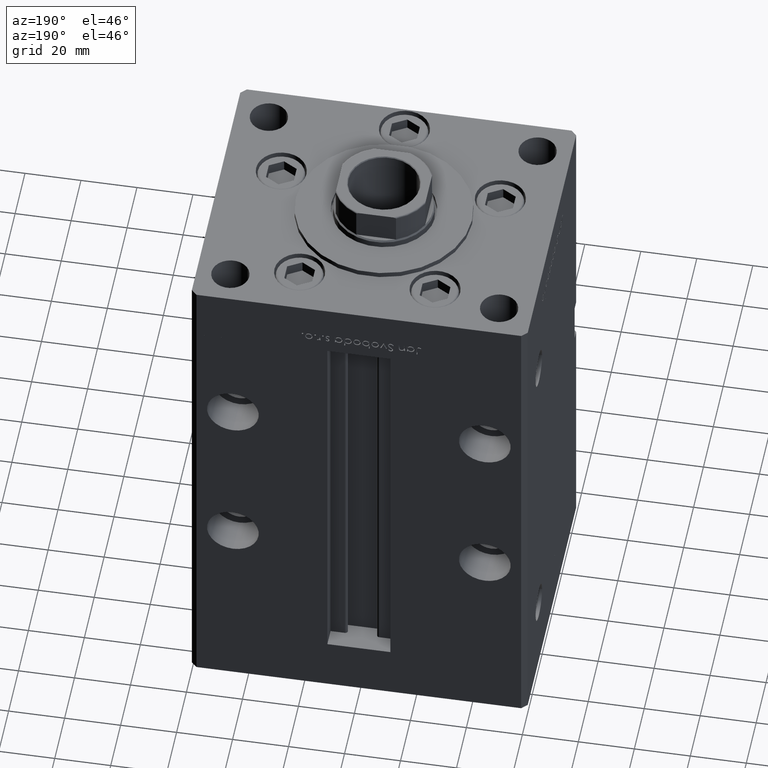
[diagram: clean part render]
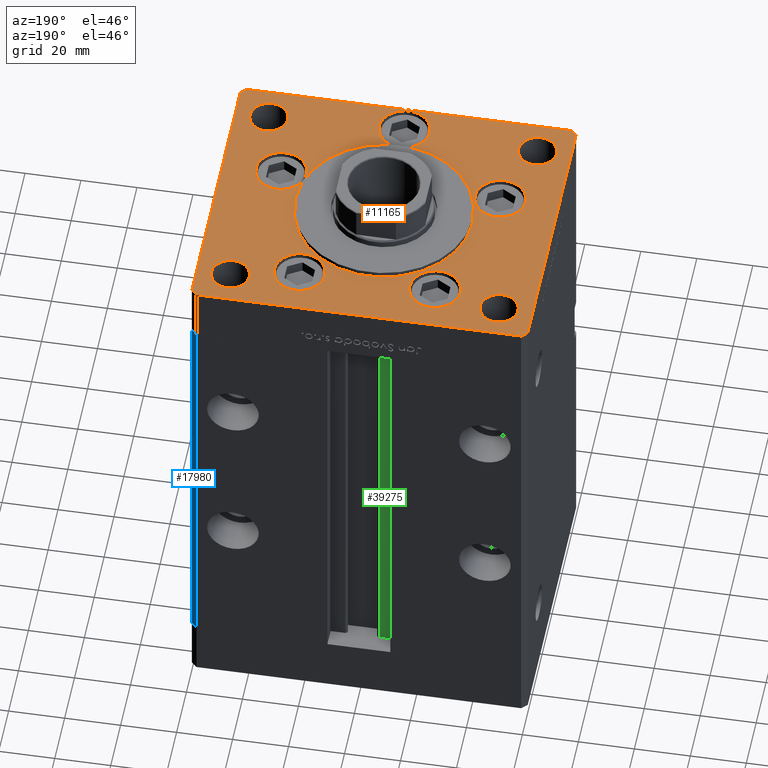
[diagram: same view with three faces highlighted in distinct colors, each labeled with its STEP entity id]
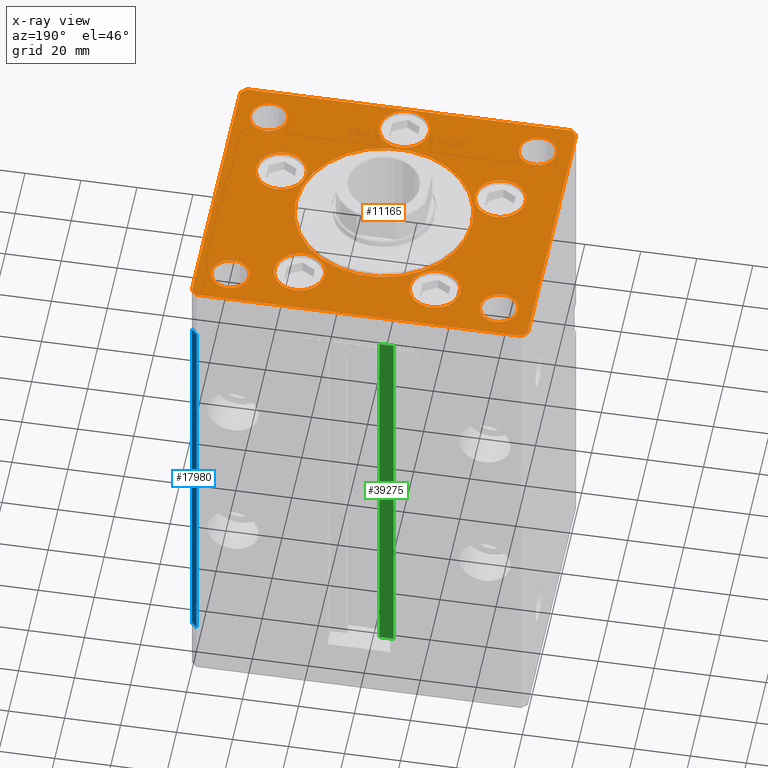
[diagram: x-ray of the same camera — body ghosted, the three highlighted faces saturated]
A machine part, auxiliary view with three faces highlighted in distinct colors.
The next image is the same camera in x-ray (body ghosted, the three faces saturated) — at least one of them is partly hidden behind the body in this view.
Their STEP definitions:

[orange] entity #11165 — the highlighted planar face has unit normal (0, 0, 1).
#244 = DIRECTION ( 'NONE',  ( 0.000000000000000000, -1.000000000000000000, 0.000000000000000000 ) ) ;
#464 = ORIENTED_EDGE ( 'NONE', *, *, #22025, .F. ) ;
#522 = DIRECTION ( 'NONE',  ( 1.000000000000000000, 0.000000000000000000, 0.000000000000000000 ) ) ;
#541 = ORIENTED_EDGE ( 'NONE', *, *, #11261, .T. ) ;
#556 = LINE ( 'NONE', #21225, #48701 ) ;
#705 = DIRECTION ( 'NONE',  ( 1.000000000000000000, 0.000000000000000000, 0.000000000000000000 ) ) ;
#729 = VERTEX_POINT ( 'NONE', #44533 ) ;
#972 = LINE ( 'NONE', #33717, #1427 ) ;
#1060 = CARTESIAN_POINT ( 'NONE',  ( -48.00000000000000000, 39.00000000000000711, 0.000000000000000000 ) ) ;
#1285 = CARTESIAN_POINT ( 'NONE',  ( 9.000000000000000000, -41.50000000000000000, 0.000000000000000000 ) ) ;
#1320 = CARTESIAN_POINT ( 'NONE',  ( 60.00000000000001421, -48.99999999999992895, 0.000000000000000000 ) ) ;
#1427 = VECTOR ( 'NONE', #16791, 1000.000000000000000 ) ;
#1517 = VERTEX_POINT ( 'NONE', #22561 ) ;
#1694 = AXIS2_PLACEMENT_3D ( 'NONE', #44823, #8851, #522 ) ;
#1729 = EDGE_CURVE ( 'NONE', #21519, #47003, #39734, .T. ) ;
#2060 = ORIENTED_EDGE ( 'NONE', *, *, #10978, .F. ) ;
#3916 = DIRECTION ( 'NONE',  ( 1.000000000000000000, 0.000000000000000000, 0.000000000000000000 ) ) ;
#4616 = ORIENTED_EDGE ( 'NONE', *, *, #7751, .T. ) ;
#4880 = EDGE_LOOP ( 'NONE', ( #2060, #15653 ) ) ;
#4947 = LINE ( 'NONE', #18889, #41809 ) ;
#5631 = CARTESIAN_POINT ( 'NONE',  ( 58.00000000000000000, 51.00000000000000711, 0.000000000000000000 ) ) ;
#5741 = ORIENTED_EDGE ( 'NONE', *, *, #18972, .F. ) ;
#5894 = CARTESIAN_POINT ( 'NONE',  ( 0.000000000000000000, -6.938893903907228378E-15, 0.000000000000000000 ) ) ;
#5962 = VERTEX_POINT ( 'NONE', #52958 ) ;
#6433 = CIRCLE ( 'NONE', #28715, 6.749999999999999112 ) ;
#6438 = VERTEX_POINT ( 'NONE', #9283 ) ;
#6883 = CARTESIAN_POINT ( 'NONE',  ( -39.12657522565563539, -13.83333333333332860, 0.000000000000000000 ) ) ;
#6922 = VECTOR ( 'NONE', #34974, 1000.000000000000000 ) ;
#6984 = EDGE_CURVE ( 'NONE', #32209, #44562, #556, .T. ) ;
#7154 = EDGE_CURVE ( 'NONE', #14812, #36563, #36713, .T. ) ;
#7199 = EDGE_LOOP ( 'NONE', ( #15453, #11127 ) ) ;
#7240 = VERTEX_POINT ( 'NONE', #28957 ) ;
#7602 = DIRECTION ( 'NONE',  ( -0.000000000000000000, -0.000000000000000000, -1.000000000000000000 ) ) ;
#7739 = DIRECTION ( 'NONE',  ( 0.000000000000000000, 0.000000000000000000, 1.000000000000000000 ) ) ;
#7751 = EDGE_CURVE ( 'NONE', #52829, #44673, #21312, .T. ) ;
#7975 = DIRECTION ( 'NONE',  ( 0.000000000000000000, 0.000000000000000000, 1.000000000000000000 ) ) ;
#8221 = CIRCLE ( 'NONE', #21043, 9.000000000000000000 ) ;
#8405 = DIRECTION ( 'NONE',  ( 0.000000000000000000, 0.000000000000000000, 1.000000000000000000 ) ) ;
#8851 = DIRECTION ( 'NONE',  ( -0.000000000000000000, 0.000000000000000000, 1.000000000000000000 ) ) ;
#8930 = EDGE_LOOP ( 'NONE', ( #32808, #4616 ) ) ;
#8967 = EDGE_CURVE ( 'NONE', #39421, #729, #44451, .T. ) ;
#9283 = CARTESIAN_POINT ( 'NONE',  ( -57.99999999999998579, 50.99999999999997868, 0.000000000000000000 ) ) ;
#9294 = CIRCLE ( 'NONE', #45297, 6.749999999999999112 ) ;
#9314 = ORIENTED_EDGE ( 'NONE', *, *, #19619, .F. ) ;
#9519 = ORIENTED_EDGE ( 'NONE', *, *, #30278, .F. ) ;
#9691 = CARTESIAN_POINT ( 'NONE',  ( 15.19288941894913236, 33.71874999999998579, 0.000000000000000000 ) ) ;
#10639 = DIRECTION ( 'NONE',  ( 0.000000000000000000, 0.000000000000000000, 1.000000000000000000 ) ) ;
#10751 = CARTESIAN_POINT ( 'NONE',  ( -54.75000000000000000, -39.00000000000001421, 0.000000000000000000 ) ) ;
#10758 = CIRCLE ( 'NONE', #40745, 6.749999999999999112 ) ;
#10849 = EDGE_CURVE ( 'NONE', #16559, #5962, #22267, .T. ) ;
#10978 = EDGE_CURVE ( 'NONE', #7240, #49431, #36828, .T. ) ;
#11035 = EDGE_LOOP ( 'NONE', ( #5741, #29069 ) ) ;
#11127 = ORIENTED_EDGE ( 'NONE', *, *, #39998, .F. ) ;
#11165 = ADVANCED_FACE ( 'NONE', ( #12085, #28462, #24944, #33276, #12603, #45081, #29252, #20673, #16367, #37290, #20139 ), #24681, .T. ) ;
#11261 = EDGE_CURVE ( 'NONE', #15710, #36071, #29513, .T. ) ;
#11421 = DIRECTION ( 'NONE',  ( 1.000000000000000000, 0.000000000000000000, 0.000000000000000000 ) ) ;
#11695 = CARTESIAN_POINT ( 'NONE',  ( 39.12657522565563539, -13.83333333333332860, 0.000000000000000000 ) ) ;
#12085 = FACE_BOUND ( 'NONE', #21482, .T. ) ;
#12116 = DIRECTION ( 'NONE',  ( 1.000000000000000000, 9.570888143320313916E-16, 0.000000000000000000 ) ) ;
#12603 = FACE_BOUND ( 'NONE', #29186, .T. ) ;
#12862 = DIRECTION ( 'NONE',  ( -1.000000000000000000, 0.000000000000000000, 0.000000000000000000 ) ) ;
#13134 = EDGE_CURVE ( 'NONE', #49431, #7240, #18915, .T. ) ;
#13219 = DIRECTION ( 'NONE',  ( -0.000000000000000000, -0.000000000000000000, -1.000000000000000000 ) ) ;
#13297 = CARTESIAN_POINT ( 'NONE',  ( -54.75000000000000000, 39.00000000000000711, 0.000000000000000000 ) ) ;
#14110 = CIRCLE ( 'NONE', #39870, 31.50000000000000000 ) ;
#14347 = VERTEX_POINT ( 'NONE', #5631 ) ;
#14420 = LINE ( 'NONE', #39656, #52649 ) ;
#14511 = EDGE_LOOP ( 'NONE', ( #21604, #464 ) ) ;
#14812 = VERTEX_POINT ( 'NONE', #38569 ) ;
#15021 = DIRECTION ( 'NONE',  ( 1.000000000000000000, 0.000000000000000000, 0.000000000000000000 ) ) ;
#15453 = ORIENTED_EDGE ( 'NONE', *, *, #37018, .F. ) ;
#15653 = ORIENTED_EDGE ( 'NONE', *, *, #13134, .F. ) ;
#15710 = VERTEX_POINT ( 'NONE', #31872 ) ;
#16230 = ORIENTED_EDGE ( 'NONE', *, *, #17148, .T. ) ;
#16362 = VERTEX_POINT ( 'NONE', #27094 ) ;
#16367 = FACE_BOUND ( 'NONE', #4880, .T. ) ;
#16559 = VERTEX_POINT ( 'NONE', #1285 ) ;
#16581 = VERTEX_POINT ( 'NONE', #19003 ) ;
#16665 = CARTESIAN_POINT ( 'NONE',  ( 33.19288941894913592, 33.71874999999998579, 0.000000000000000000 ) ) ;
#16791 = DIRECTION ( 'NONE',  ( -1.000000000000000000, -2.392722035830078972E-16, 0.000000000000000000 ) ) ;
#16823 = VERTEX_POINT ( 'NONE', #47116 ) ;
#16897 = CARTESIAN_POINT ( 'NONE',  ( 48.00000000000000000, 39.00000000000000000, 0.000000000000000000 ) ) ;
#16918 = CARTESIAN_POINT ( 'NONE',  ( -15.19288941894913592, 33.71874999999998579, 0.000000000000000000 ) ) ;
#17148 = EDGE_CURVE ( 'NONE', #6438, #21519, #18593, .T. ) ;
#17422 = DIRECTION ( 'NONE',  ( -0.000000000000000000, -0.000000000000000000, -1.000000000000000000 ) ) ;
#18593 = LINE ( 'NONE', #26362, #6922 ) ;
#18759 = AXIS2_PLACEMENT_3D ( 'NONE', #11695, #47951, #3916 ) ;
#18889 = CARTESIAN_POINT ( 'NONE',  ( -60.00000000000000000, -49.00000000000004263, 0.000000000000000000 ) ) ;
#18915 = CIRCLE ( 'NONE', #35084, 6.749999999999999112 ) ;
#18972 = EDGE_CURVE ( 'NONE', #729, #39421, #24192, .T. ) ;
#19003 = CARTESIAN_POINT ( 'NONE',  ( -31.50000000000000000, -6.938893903907228378E-15, 0.000000000000000000 ) ) ;
#19050 = AXIS2_PLACEMENT_3D ( 'NONE', #40998, #7739, #27608 ) ;
#19065 = AXIS2_PLACEMENT_3D ( 'NONE', #22923, #51375, #31251 ) ;
#19331 = CARTESIAN_POINT ( 'NONE',  ( -60.00000000000000000, 49.00000000000000000, 0.000000000000000000 ) ) ;
#19583 = DIRECTION ( 'NONE',  ( 0.000000000000000000, 0.000000000000000000, 1.000000000000000000 ) ) ;
#19619 = EDGE_CURVE ( 'NONE', #46501, #16581, #14110, .T. ) ;
#20128 = DIRECTION ( 'NONE',  ( 0.000000000000000000, 0.000000000000000000, 1.000000000000000000 ) ) ;
#20139 = FACE_BOUND ( 'NONE', #26250, .T. ) ;
#20164 = LINE ( 'NONE', #36801, #37358 ) ;
#20290 = EDGE_CURVE ( 'NONE', #52941, #1517, #6433, .T. ) ;
#20575 = CARTESIAN_POINT ( 'NONE',  ( -24.19288941894913592, 33.71874999999998579, 0.000000000000000000 ) ) ;
#20673 = FACE_BOUND ( 'NONE', #14511, .T. ) ;
#20755 = DIRECTION ( 'NONE',  ( 1.000000000000000000, 0.000000000000000000, 0.000000000000000000 ) ) ;
#20815 = DIRECTION ( 'NONE',  ( 1.000000000000000000, 0.000000000000000000, 0.000000000000000000 ) ) ;
#21043 = AXIS2_PLACEMENT_3D ( 'NONE', #36132, #32637, #20815 ) ;
#21225 = CARTESIAN_POINT ( 'NONE',  ( -58.00000000000000711, -51.00000000000002842, 0.000000000000000000 ) ) ;
#21312 = CIRCLE ( 'NONE', #53027, 6.749999999999999112 ) ;
#21482 = EDGE_LOOP ( 'NONE', ( #41193, #9314 ) ) ;
#21519 = VERTEX_POINT ( 'NONE', #45216 ) ;
#21604 = ORIENTED_EDGE ( 'NONE', *, *, #38823, .F. ) ;
#22025 = EDGE_CURVE ( 'NONE', #16823, #47028, #10758, .T. ) ;
#22249 = DIRECTION ( 'NONE',  ( 0.000000000000000000, 1.000000000000000000, 0.000000000000000000 ) ) ;
#22267 = CIRCLE ( 'NONE', #26554, 9.000000000000000000 ) ;
#22400 = ORIENTED_EDGE ( 'NONE', *, *, #24528, .T. ) ;
#22561 = CARTESIAN_POINT ( 'NONE',  ( 54.75000000000000000, -39.00000000000001421, 0.000000000000000000 ) ) ;
#22649 = EDGE_CURVE ( 'NONE', #16362, #36040, #8221, .T. ) ;
#22923 = CARTESIAN_POINT ( 'NONE',  ( 0.000000000000000000, -41.50000000000000000, 0.000000000000000000 ) ) ;
#23598 = CARTESIAN_POINT ( 'NONE',  ( -39.12657522565563539, -13.83333333333332860, 0.000000000000000000 ) ) ;
#23993 = AXIS2_PLACEMENT_3D ( 'NONE', #48323, #34469, #48583 ) ;
#24192 = CIRCLE ( 'NONE', #19050, 9.000000000000001776 ) ;
#24497 = DIRECTION ( 'NONE',  ( -1.000000000000000000, 0.000000000000000000, 0.000000000000000000 ) ) ;
#24528 = EDGE_CURVE ( 'NONE', #36071, #14347, #20164, .T. ) ;
#24681 = PLANE ( 'NONE',  #1694 ) ;
#24783 = CARTESIAN_POINT ( 'NONE',  ( -48.12657522565563539, -13.83333333333332682, 0.000000000000000000 ) ) ;
#24944 = FACE_BOUND ( 'NONE', #7199, .T. ) ;
#25069 = EDGE_CURVE ( 'NONE', #14347, #6438, #972, .T. ) ;
#25246 = DIRECTION ( 'NONE',  ( 1.000000000000000000, 0.000000000000000000, 0.000000000000000000 ) ) ;
#26250 = EDGE_LOOP ( 'NONE', ( #40337, #33957 ) ) ;
#26362 = CARTESIAN_POINT ( 'NONE',  ( -57.99999999999998579, 50.99999999999997868, 0.000000000000000000 ) ) ;
#26554 = AXIS2_PLACEMENT_3D ( 'NONE', #28585, #28841, #52727 ) ;
#26764 = DIRECTION ( 'NONE',  ( 0.7071067811865474617, 0.7071067811865474617, 0.000000000000000000 ) ) ;
#26841 = CARTESIAN_POINT ( 'NONE',  ( 60.00000000000001421, 49.00000000000002842, 0.000000000000000000 ) ) ;
#27094 = CARTESIAN_POINT ( 'NONE',  ( -33.19288941894913592, 33.71874999999998579, 0.000000000000000000 ) ) ;
#27187 = CARTESIAN_POINT ( 'NONE',  ( 58.00000000000001421, -50.99999999999992184, 0.000000000000000000 ) ) ;
#27450 = CIRCLE ( 'NONE', #50575, 6.749999999999999112 ) ;
#27482 = AXIS2_PLACEMENT_3D ( 'NONE', #41410, #8405, #20755 ) ;
#27608 = DIRECTION ( 'NONE',  ( 1.000000000000000000, 0.000000000000000000, 0.000000000000000000 ) ) ;
#28262 = DIRECTION ( 'NONE',  ( 0.000000000000000000, 0.000000000000000000, 1.000000000000000000 ) ) ;
#28382 = CARTESIAN_POINT ( 'NONE',  ( -60.00000000000000000, -49.00000000000004263, 0.000000000000000000 ) ) ;
#28462 = FACE_BOUND ( 'NONE', #45815, .T. ) ;
#28522 = ORIENTED_EDGE ( 'NONE', *, *, #6984, .T. ) ;
#28585 = CARTESIAN_POINT ( 'NONE',  ( 0.000000000000000000, -41.50000000000000000, 0.000000000000000000 ) ) ;
#28656 = EDGE_CURVE ( 'NONE', #36040, #16362, #41775, .T. ) ;
#28715 = AXIS2_PLACEMENT_3D ( 'NONE', #29067, #13219, #24497 ) ;
#28841 = DIRECTION ( 'NONE',  ( 0.000000000000000000, 0.000000000000000000, 1.000000000000000000 ) ) ;
#28957 = CARTESIAN_POINT ( 'NONE',  ( -41.25000000000000000, -39.00000000000001421, 0.000000000000000000 ) ) ;
#29067 = CARTESIAN_POINT ( 'NONE',  ( 48.00000000000000000, -39.00000000000001421, 0.000000000000000000 ) ) ;
#29069 = ORIENTED_EDGE ( 'NONE', *, *, #8967, .F. ) ;
#29129 = VECTOR ( 'NONE', #22249, 1000.000000000000000 ) ;
#29186 = EDGE_LOOP ( 'NONE', ( #39288, #32834 ) ) ;
#29252 = FACE_BOUND ( 'NONE', #8930, .T. ) ;
#29513 = LINE ( 'NONE', #1320, #29129 ) ;
#29861 = CIRCLE ( 'NONE', #32437, 6.749999999999999112 ) ;
#30278 = EDGE_CURVE ( 'NONE', #36563, #14812, #47033, .T. ) ;
#31251 = DIRECTION ( 'NONE',  ( 1.000000000000000000, 0.000000000000000000, 0.000000000000000000 ) ) ;
#31385 = EDGE_CURVE ( 'NONE', #44673, #52829, #29861, .T. ) ;
#31387 = EDGE_CURVE ( 'NONE', #1517, #52941, #9294, .T. ) ;
#31872 = CARTESIAN_POINT ( 'NONE',  ( 60.00000000000001421, -48.99999999999992895, 0.000000000000000000 ) ) ;
#32209 = VERTEX_POINT ( 'NONE', #36419 ) ;
#32286 = DIRECTION ( 'NONE',  ( 1.000000000000000000, 0.000000000000000000, 0.000000000000000000 ) ) ;
#32432 = AXIS2_PLACEMENT_3D ( 'NONE', #52593, #20128, #36763 ) ;
#32437 = AXIS2_PLACEMENT_3D ( 'NONE', #52664, #40858, #40073 ) ;
#32637 = DIRECTION ( 'NONE',  ( 0.000000000000000000, 0.000000000000000000, 1.000000000000000000 ) ) ;
#32808 = ORIENTED_EDGE ( 'NONE', *, *, #31385, .T. ) ;
#32816 = CARTESIAN_POINT ( 'NONE',  ( 48.00000000000000000, -39.00000000000001421, 0.000000000000000000 ) ) ;
#32834 = ORIENTED_EDGE ( 'NONE', *, *, #50942, .F. ) ;
#33057 = CARTESIAN_POINT ( 'NONE',  ( -41.25000000000000000, 39.00000000000000711, 0.000000000000000000 ) ) ;
#33269 = CIRCLE ( 'NONE', #32432, 31.50000000000000000 ) ;
#33276 = FACE_BOUND ( 'NONE', #11035, .T. ) ;
#33641 = EDGE_CURVE ( 'NONE', #47003, #32209, #4947, .T. ) ;
#33717 = CARTESIAN_POINT ( 'NONE',  ( 58.00000000000000000, 51.00000000000000711, 0.000000000000000000 ) ) ;
#33957 = ORIENTED_EDGE ( 'NONE', *, *, #20290, .T. ) ;
#34044 = EDGE_CURVE ( 'NONE', #16581, #46501, #33269, .T. ) ;
#34082 = AXIS2_PLACEMENT_3D ( 'NONE', #20575, #7975, #705 ) ;
#34411 = CARTESIAN_POINT ( 'NONE',  ( 48.00000000000000000, 39.00000000000000000, 0.000000000000000000 ) ) ;
#34469 = DIRECTION ( 'NONE',  ( 0.000000000000000000, 0.000000000000000000, 1.000000000000000000 ) ) ;
#34656 = ORIENTED_EDGE ( 'NONE', *, *, #52585, .T. ) ;
#34974 = DIRECTION ( 'NONE',  ( -0.7071067811865536790, -0.7071067811865414665, 0.000000000000000000 ) ) ;
#34989 = DIRECTION ( 'NONE',  ( 0.7071067811865474617, -0.7071067811865474617, 0.000000000000000000 ) ) ;
#35084 = AXIS2_PLACEMENT_3D ( 'NONE', #48925, #28262, #32286 ) ;
#35775 = AXIS2_PLACEMENT_3D ( 'NONE', #6883, #10639, #11421 ) ;
#36040 = VERTEX_POINT ( 'NONE', #16918 ) ;
#36071 = VERTEX_POINT ( 'NONE', #26841 ) ;
#36132 = CARTESIAN_POINT ( 'NONE',  ( -24.19288941894913592, 33.71874999999998579, 0.000000000000000000 ) ) ;
#36419 = CARTESIAN_POINT ( 'NONE',  ( -58.00000000000000711, -51.00000000000002842, 0.000000000000000000 ) ) ;
#36563 = VERTEX_POINT ( 'NONE', #24783 ) ;
#36713 = CIRCLE ( 'NONE', #50423, 9.000000000000001776 ) ;
#36763 = DIRECTION ( 'NONE',  ( 1.000000000000000000, 0.000000000000000000, 0.000000000000000000 ) ) ;
#36801 = CARTESIAN_POINT ( 'NONE',  ( 60.00000000000001421, 49.00000000000002842, 0.000000000000000000 ) ) ;
#36828 = CIRCLE ( 'NONE', #23993, 6.749999999999999112 ) ;
#36841 = DIRECTION ( 'NONE',  ( -1.000000000000000000, 0.000000000000000000, 0.000000000000000000 ) ) ;
#37018 = EDGE_CURVE ( 'NONE', #43974, #46466, #44486, .T. ) ;
#37290 = FACE_OUTER_BOUND ( 'NONE', #47094, .T. ) ;
#37358 = VECTOR ( 'NONE', #52893, 1000.000000000000000 ) ;
#37880 = CIRCLE ( 'NONE', #19065, 9.000000000000000000 ) ;
#38006 = CARTESIAN_POINT ( 'NONE',  ( 54.75000000000000000, 39.00000000000000000, 0.000000000000000000 ) ) ;
#38511 = AXIS2_PLACEMENT_3D ( 'NONE', #46186, #49954, #25246 ) ;
#38569 = CARTESIAN_POINT ( 'NONE',  ( -30.12657522565563539, -13.83333333333332860, 0.000000000000000000 ) ) ;
#38823 = EDGE_CURVE ( 'NONE', #47028, #16823, #27450, .T. ) ;
#39288 = ORIENTED_EDGE ( 'NONE', *, *, #10849, .F. ) ;
#39421 = VERTEX_POINT ( 'NONE', #45831 ) ;
#39656 = CARTESIAN_POINT ( 'NONE',  ( 58.00000000000001421, -50.99999999999992184, 0.000000000000000000 ) ) ;
#39734 = LINE ( 'NONE', #19331, #42562 ) ;
#39870 = AXIS2_PLACEMENT_3D ( 'NONE', #5894, #42383, #45892 ) ;
#39944 = ORIENTED_EDGE ( 'NONE', *, *, #28656, .F. ) ;
#39998 = EDGE_CURVE ( 'NONE', #46466, #43974, #42921, .T. ) ;
#40073 = DIRECTION ( 'NONE',  ( -1.000000000000000000, 0.000000000000000000, 0.000000000000000000 ) ) ;
#40337 = ORIENTED_EDGE ( 'NONE', *, *, #31387, .T. ) ;
#40745 = AXIS2_PLACEMENT_3D ( 'NONE', #16897, #40803, #49655 ) ;
#40803 = DIRECTION ( 'NONE',  ( 0.000000000000000000, 0.000000000000000000, 1.000000000000000000 ) ) ;
#40858 = DIRECTION ( 'NONE',  ( -0.000000000000000000, -0.000000000000000000, -1.000000000000000000 ) ) ;
#40998 = CARTESIAN_POINT ( 'NONE',  ( 39.12657522565563539, -13.83333333333332860, 0.000000000000000000 ) ) ;
#41111 = ORIENTED_EDGE ( 'NONE', *, *, #22649, .F. ) ;
#41193 = ORIENTED_EDGE ( 'NONE', *, *, #34044, .F. ) ;
#41410 = CARTESIAN_POINT ( 'NONE',  ( 24.19288941894913592, 33.71874999999998579, 0.000000000000000000 ) ) ;
#41775 = CIRCLE ( 'NONE', #34082, 9.000000000000000000 ) ;
#41809 = VECTOR ( 'NONE', #34989, 1000.000000000000114 ) ;
#41873 = ORIENTED_EDGE ( 'NONE', *, *, #1729, .T. ) ;
#41896 = CARTESIAN_POINT ( 'NONE',  ( 31.50000000000000000, -3.081256486593065689E-15, 0.000000000000000000 ) ) ;
#42383 = DIRECTION ( 'NONE',  ( 0.000000000000000000, 0.000000000000000000, 1.000000000000000000 ) ) ;
#42562 = VECTOR ( 'NONE', #244, 1000.000000000000000 ) ;
#42921 = CIRCLE ( 'NONE', #27482, 9.000000000000001776 ) ;
#43056 = ORIENTED_EDGE ( 'NONE', *, *, #33641, .T. ) ;
#43516 = DIRECTION ( 'NONE',  ( 1.000000000000000000, 0.000000000000000000, 0.000000000000000000 ) ) ;
#43974 = VERTEX_POINT ( 'NONE', #16665 ) ;
#44451 = CIRCLE ( 'NONE', #18759, 9.000000000000001776 ) ;
#44486 = CIRCLE ( 'NONE', #38511, 9.000000000000001776 ) ;
#44533 = CARTESIAN_POINT ( 'NONE',  ( 48.12657522565563539, -13.83333333333332860, 0.000000000000000000 ) ) ;
#44562 = VERTEX_POINT ( 'NONE', #27187 ) ;
#44673 = VERTEX_POINT ( 'NONE', #33057 ) ;
#44823 = CARTESIAN_POINT ( 'NONE',  ( 0.000000000000000000, 0.000000000000000000, 0.000000000000000000 ) ) ;
#45081 = FACE_BOUND ( 'NONE', #46968, .T. ) ;
#45216 = CARTESIAN_POINT ( 'NONE',  ( -60.00000000000000000, 49.00000000000000000, 0.000000000000000000 ) ) ;
#45297 = AXIS2_PLACEMENT_3D ( 'NONE', #32816, #7602, #36841 ) ;
#45379 = ORIENTED_EDGE ( 'NONE', *, *, #25069, .T. ) ;
#45815 = EDGE_LOOP ( 'NONE', ( #39944, #41111 ) ) ;
#45831 = CARTESIAN_POINT ( 'NONE',  ( 30.12657522565563539, -13.83333333333332682, 0.000000000000000000 ) ) ;
#45892 = DIRECTION ( 'NONE',  ( 1.000000000000000000, 0.000000000000000000, 0.000000000000000000 ) ) ;
#46186 = CARTESIAN_POINT ( 'NONE',  ( 24.19288941894913592, 33.71874999999998579, 0.000000000000000000 ) ) ;
#46276 = ORIENTED_EDGE ( 'NONE', *, *, #7154, .F. ) ;
#46466 = VERTEX_POINT ( 'NONE', #9691 ) ;
#46501 = VERTEX_POINT ( 'NONE', #41896 ) ;
#46838 = CARTESIAN_POINT ( 'NONE',  ( 41.25000000000000000, -39.00000000000001421, 0.000000000000000000 ) ) ;
#46968 = EDGE_LOOP ( 'NONE', ( #46276, #9519 ) ) ;
#47003 = VERTEX_POINT ( 'NONE', #28382 ) ;
#47028 = VERTEX_POINT ( 'NONE', #38006 ) ;
#47033 = CIRCLE ( 'NONE', #35775, 9.000000000000001776 ) ;
#47094 = EDGE_LOOP ( 'NONE', ( #43056, #28522, #34656, #541, #22400, #45379, #16230, #41873 ) ) ;
#47116 = CARTESIAN_POINT ( 'NONE',  ( 41.25000000000000000, 39.00000000000000000, 0.000000000000000000 ) ) ;
#47555 = DIRECTION ( 'NONE',  ( 0.000000000000000000, 0.000000000000000000, 1.000000000000000000 ) ) ;
#47951 = DIRECTION ( 'NONE',  ( 0.000000000000000000, 0.000000000000000000, 1.000000000000000000 ) ) ;
#48323 = CARTESIAN_POINT ( 'NONE',  ( -48.00000000000000000, -39.00000000000001421, 0.000000000000000000 ) ) ;
#48583 = DIRECTION ( 'NONE',  ( 1.000000000000000000, 0.000000000000000000, 0.000000000000000000 ) ) ;
#48701 = VECTOR ( 'NONE', #12116, 1000.000000000000000 ) ;
#48925 = CARTESIAN_POINT ( 'NONE',  ( -48.00000000000000000, -39.00000000000001421, 0.000000000000000000 ) ) ;
#49431 = VERTEX_POINT ( 'NONE', #10751 ) ;
#49655 = DIRECTION ( 'NONE',  ( 1.000000000000000000, 0.000000000000000000, 0.000000000000000000 ) ) ;
#49954 = DIRECTION ( 'NONE',  ( 0.000000000000000000, 0.000000000000000000, 1.000000000000000000 ) ) ;
#50423 = AXIS2_PLACEMENT_3D ( 'NONE', #23598, #19583, #15021 ) ;
#50575 = AXIS2_PLACEMENT_3D ( 'NONE', #34411, #47555, #43516 ) ;
#50942 = EDGE_CURVE ( 'NONE', #5962, #16559, #37880, .T. ) ;
#51375 = DIRECTION ( 'NONE',  ( 0.000000000000000000, 0.000000000000000000, 1.000000000000000000 ) ) ;
#52585 = EDGE_CURVE ( 'NONE', #44562, #15710, #14420, .T. ) ;
#52593 = CARTESIAN_POINT ( 'NONE',  ( 0.000000000000000000, -6.938893903907228378E-15, 0.000000000000000000 ) ) ;
#52649 = VECTOR ( 'NONE', #26764, 1000.000000000000114 ) ;
#52664 = CARTESIAN_POINT ( 'NONE',  ( -48.00000000000000000, 39.00000000000000711, 0.000000000000000000 ) ) ;
#52727 = DIRECTION ( 'NONE',  ( 1.000000000000000000, 0.000000000000000000, 0.000000000000000000 ) ) ;
#52829 = VERTEX_POINT ( 'NONE', #13297 ) ;
#52893 = DIRECTION ( 'NONE',  ( -0.7071067811865536790, 0.7071067811865414665, 0.000000000000000000 ) ) ;
#52941 = VERTEX_POINT ( 'NONE', #46838 ) ;
#52958 = CARTESIAN_POINT ( 'NONE',  ( -9.000000000000000000, -41.50000000000000000, 0.000000000000000000 ) ) ;
#53027 = AXIS2_PLACEMENT_3D ( 'NONE', #1060, #17422, #12862 ) ;

[blue] entity #17980 — the highlighted planar face has unit normal (0.7071, 0.7071, 0).
#468 = CARTESIAN_POINT ( 'NONE',  ( 57.99999999999999289, 51.00000000000000711, 148.5000000000000000 ) ) ;
#3179 = CARTESIAN_POINT ( 'NONE',  ( 57.99999999999999289, 51.00000000000000711, 0.000000000000000000 ) ) ;
#4854 = VECTOR ( 'NONE', #12131, 1000.000000000000000 ) ;
#5498 = VERTEX_POINT ( 'NONE', #18438 ) ;
#6590 = DIRECTION ( 'NONE',  ( 0.7071067811865500152, -0.7071067811865451302, 0.000000000000000000 ) ) ;
#7121 = CARTESIAN_POINT ( 'NONE',  ( 57.99999999999999289, 51.00000000000000711, 0.000000000000000000 ) ) ;
#8425 = FACE_OUTER_BOUND ( 'NONE', #38933, .T. ) ;
#8868 = VERTEX_POINT ( 'NONE', #43124 ) ;
#10254 = CARTESIAN_POINT ( 'NONE',  ( 60.00000000000001421, 49.00000000000000000, 148.5000000000000000 ) ) ;
#11494 = VERTEX_POINT ( 'NONE', #3179 ) ;
#11579 = DIRECTION ( 'NONE',  ( 0.7071067811865500152, -0.7071067811865451302, 0.000000000000000000 ) ) ;
#12131 = DIRECTION ( 'NONE',  ( -0.000000000000000000, -0.000000000000000000, -1.000000000000000000 ) ) ;
#12389 = VERTEX_POINT ( 'NONE', #10254 ) ;
#13507 = DIRECTION ( 'NONE',  ( 0.7071067811865451302, 0.7071067811865499042, -0.000000000000000000 ) ) ;
#13679 = EDGE_CURVE ( 'NONE', #8868, #11494, #45027, .T. ) ;
#17980 = ADVANCED_FACE ( 'NONE', ( #8425 ), #37935, .T. ) ;
#18438 = CARTESIAN_POINT ( 'NONE',  ( 60.00000000000001421, 49.00000000000000000, 0.000000000000000000 ) ) ;
#18798 = VECTOR ( 'NONE', #29201, 1000.000000000000000 ) ;
#24464 = CARTESIAN_POINT ( 'NONE',  ( 60.00000000000001421, 49.00000000000000000, 148.5000000000000000 ) ) ;
#24508 = EDGE_CURVE ( 'NONE', #8868, #12389, #36017, .T. ) ;
#25464 = ORIENTED_EDGE ( 'NONE', *, *, #24508, .T. ) ;
#25545 = ORIENTED_EDGE ( 'NONE', *, *, #40483, .F. ) ;
#26221 = EDGE_CURVE ( 'NONE', #12389, #5498, #49698, .T. ) ;
#29201 = DIRECTION ( 'NONE',  ( -0.000000000000000000, -0.000000000000000000, -1.000000000000000000 ) ) ;
#36017 = LINE ( 'NONE', #49152, #45948 ) ;
#37935 = PLANE ( 'NONE',  #48193 ) ;
#38933 = EDGE_LOOP ( 'NONE', ( #25545, #52617, #25464, #41006 ) ) ;
#40483 = EDGE_CURVE ( 'NONE', #11494, #5498, #46843, .T. ) ;
#41006 = ORIENTED_EDGE ( 'NONE', *, *, #26221, .T. ) ;
#43124 = CARTESIAN_POINT ( 'NONE',  ( 57.99999999999999289, 51.00000000000000711, 148.5000000000000000 ) ) ;
#43767 = VECTOR ( 'NONE', #6590, 1000.000000000000114 ) ;
#45027 = LINE ( 'NONE', #468, #18798 ) ;
#45948 = VECTOR ( 'NONE', #11579, 1000.000000000000114 ) ;
#46843 = LINE ( 'NONE', #7121, #43767 ) ;
#48193 = AXIS2_PLACEMENT_3D ( 'NONE', #50273, #13507, #49227 ) ;
#49152 = CARTESIAN_POINT ( 'NONE',  ( 57.99999999999999289, 51.00000000000000711, 148.5000000000000000 ) ) ;
#49227 = DIRECTION ( 'NONE',  ( -0.7071067811865499042, 0.7071067811865451302, 0.000000000000000000 ) ) ;
#49698 = LINE ( 'NONE', #24464, #4854 ) ;
#50273 = CARTESIAN_POINT ( 'NONE',  ( 57.99999999999999289, 51.00000000000000711, 148.5000000000000000 ) ) ;
#52617 = ORIENTED_EDGE ( 'NONE', *, *, #13679, .F. ) ;

[green] entity #39275 — the highlighted planar face has unit normal (0, -1, 0).
#259 = ORIENTED_EDGE ( 'NONE', *, *, #919, .F. ) ;
#502 = VECTOR ( 'NONE', #20903, 1000.000000000000000 ) ;
#919 = EDGE_CURVE ( 'NONE', #40990, #7880, #32727, .T. ) ;
#3190 = PLANE ( 'NONE',  #44565 ) ;
#3464 = CARTESIAN_POINT ( 'NONE',  ( -6.183333333333997928, 44.50000000000000711, 0.000000000000000000 ) ) ;
#4414 = CARTESIAN_POINT ( 'NONE',  ( -6.183333333333997928, 44.50000000000000711, 0.000000000000000000 ) ) ;
#4541 = CARTESIAN_POINT ( 'NONE',  ( 0.000000000000000000, 44.50000000000000711, 148.5000000000000000 ) ) ;
#5760 = LINE ( 'NONE', #41731, #41915 ) ;
#7880 = VERTEX_POINT ( 'NONE', #27604 ) ;
#7912 = VECTOR ( 'NONE', #28573, 1000.000000000000000 ) ;
#9772 = VERTEX_POINT ( 'NONE', #35099 ) ;
#9818 = LINE ( 'NONE', #45790, #40923 ) ;
#12942 = EDGE_CURVE ( 'NONE', #9772, #40990, #5760, .T. ) ;
#13244 = LINE ( 'NONE', #4414, #7912 ) ;
#13812 = DIRECTION ( 'NONE',  ( -0.000000000000000000, -0.000000000000000000, 1.000000000000000000 ) ) ;
#18401 = DIRECTION ( 'NONE',  ( -0.000000000000000000, -0.000000000000000000, 1.000000000000000000 ) ) ;
#20903 = DIRECTION ( 'NONE',  ( -1.000000000000000000, 0.000000000000000000, 0.000000000000000000 ) ) ;
#25673 = VERTEX_POINT ( 'NONE', #42033 ) ;
#27604 = CARTESIAN_POINT ( 'NONE',  ( -11.24999999999999822, 44.50000000000000711, 148.5000000000000000 ) ) ;
#28414 = FACE_OUTER_BOUND ( 'NONE', #52853, .T. ) ;
#28573 = DIRECTION ( 'NONE',  ( 1.000000000000000000, -0.000000000000000000, -0.000000000000000000 ) ) ;
#32169 = DIRECTION ( 'NONE',  ( 0.000000000000000000, 0.000000000000000000, -1.000000000000000000 ) ) ;
#32228 = EDGE_CURVE ( 'NONE', #25673, #7880, #9818, .T. ) ;
#32727 = LINE ( 'NONE', #4541, #502 ) ;
#34907 = CARTESIAN_POINT ( 'NONE',  ( -6.183333333333997928, 44.50000000000000711, 148.5000000000000000 ) ) ;
#35099 = CARTESIAN_POINT ( 'NONE',  ( -6.183333333333997928, 44.50000000000000711, 0.000000000000000000 ) ) ;
#35425 = DIRECTION ( 'NONE',  ( 0.000000000000000000, -1.000000000000000000, -0.000000000000000000 ) ) ;
#39275 = ADVANCED_FACE ( 'NONE', ( #28414 ), #3190, .F. ) ;
#40923 = VECTOR ( 'NONE', #18401, 1000.000000000000000 ) ;
#40990 = VERTEX_POINT ( 'NONE', #34907 ) ;
#41731 = CARTESIAN_POINT ( 'NONE',  ( -6.183333333333997928, 44.50000000000000711, 0.000000000000000000 ) ) ;
#41915 = VECTOR ( 'NONE', #13812, 1000.000000000000000 ) ;
#42033 = CARTESIAN_POINT ( 'NONE',  ( -11.24999999999999822, 44.50000000000000711, 0.000000000000000000 ) ) ;
#44343 = EDGE_CURVE ( 'NONE', #25673, #9772, #13244, .T. ) ;
#44565 = AXIS2_PLACEMENT_3D ( 'NONE', #3464, #35425, #32169 ) ;
#45790 = CARTESIAN_POINT ( 'NONE',  ( -11.24999999999999822, 44.50000000000000711, 0.000000000000000000 ) ) ;
#46673 = ORIENTED_EDGE ( 'NONE', *, *, #32228, .T. ) ;
#48788 = ORIENTED_EDGE ( 'NONE', *, *, #12942, .F. ) ;
#52220 = ORIENTED_EDGE ( 'NONE', *, *, #44343, .F. ) ;
#52853 = EDGE_LOOP ( 'NONE', ( #48788, #52220, #46673, #259 ) ) ;